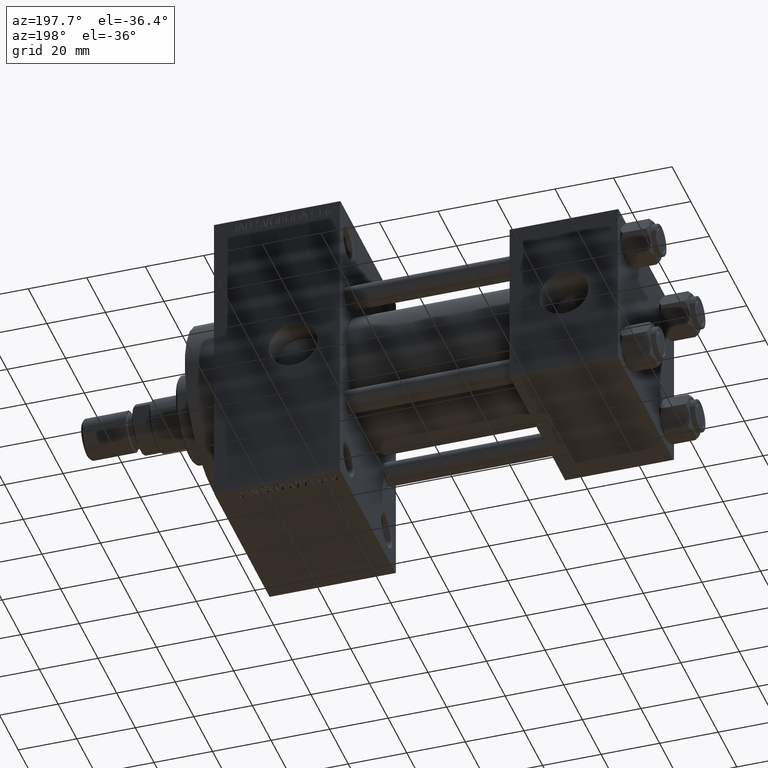
[diagram: clean part render]
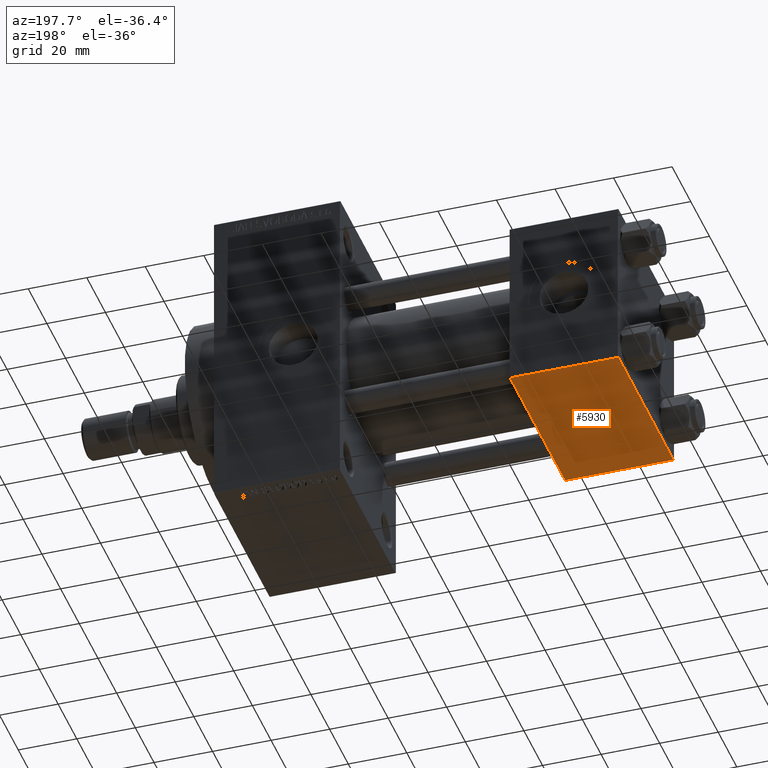
[diagram: same view with one face highlighted and labeled with its STEP entity id]
A machine part, auxiliary view. The second image highlights one B-rep face of the part: STEP entity #5930.
In plain terms, the highlighted planar face has unit normal (0, 0, -1).
Its self-contained STEP definition (entity closure, byte-faithful):
#326 = LINE ( 'NONE', #6632, #22971 ) ;
#526 = ORIENTED_EDGE ( 'NONE', *, *, #32800, .T. ) ;
#676 = FACE_OUTER_BOUND ( 'NONE', #42690, .T. ) ;
#1029 = ORIENTED_EDGE ( 'NONE', *, *, #11026, .T. ) ;
#4368 = DIRECTION ( 'NONE',  ( 0.000000000000000000, -1.000000000000000000, -1.156482317317871725E-16 ) ) ;
#4650 = LINE ( 'NONE', #19620, #46420 ) ;
#5930 = ADVANCED_FACE ( 'NONE', ( #676 ), #38075, .T. ) ;
#6486 = CARTESIAN_POINT ( 'NONE',  ( 0.000000000000000000, -29.50000000000000000, -30.00000000000000711 ) ) ;
#6632 = CARTESIAN_POINT ( 'NONE',  ( 0.000000000000000000, -29.50000000000001066, -30.00000000000000711 ) ) ;
#7405 = CARTESIAN_POINT ( 'NONE',  ( 37.00000000000000000, 29.49999999999997868, -30.00000000000000000 ) ) ;
#8398 = DIRECTION ( 'NONE',  ( 0.000000000000000000, 1.156482317317871725E-16, -1.000000000000000000 ) ) ;
#10427 = AXIS2_PLACEMENT_3D ( 'NONE', #12481, #8398, #37612 ) ;
#11026 = EDGE_CURVE ( 'NONE', #38920, #27056, #41172, .T. ) ;
#12481 = CARTESIAN_POINT ( 'NONE',  ( 37.00000000000000000, 29.99999999999999289, -30.00000000000000000 ) ) ;
#13767 = CARTESIAN_POINT ( 'NONE',  ( 0.000000000000000000, 29.49999999999997868, -30.00000000000000000 ) ) ;
#19620 = CARTESIAN_POINT ( 'NONE',  ( 0.000000000000000000, 29.99999999999999289, -30.00000000000000000 ) ) ;
#22310 = DIRECTION ( 'NONE',  ( -1.000000000000000000, 0.000000000000000000, 0.000000000000000000 ) ) ;
#22971 = VECTOR ( 'NONE', #22310, 1000.000000000000000 ) ;
#26154 = DIRECTION ( 'NONE',  ( 0.000000000000000000, -1.000000000000000000, -1.156482317317871725E-16 ) ) ;
#27056 = VERTEX_POINT ( 'NONE', #36650 ) ;
#28410 = EDGE_CURVE ( 'NONE', #38920, #39843, #4650, .T. ) ;
#30660 = VECTOR ( 'NONE', #36859, 1000.000000000000000 ) ;
#32800 = EDGE_CURVE ( 'NONE', #27056, #44898, #33827, .T. ) ;
#33580 = CARTESIAN_POINT ( 'NONE',  ( 37.00000000000000000, 29.99999999999999289, -30.00000000000000000 ) ) ;
#33827 = LINE ( 'NONE', #33580, #34232 ) ;
#34232 = VECTOR ( 'NONE', #4368, 1000.000000000000000 ) ;
#36650 = CARTESIAN_POINT ( 'NONE',  ( 37.00000000000000000, 29.49999999999997868, -30.00000000000000000 ) ) ;
#36859 = DIRECTION ( 'NONE',  ( 1.000000000000000000, 0.000000000000000000, 0.000000000000000000 ) ) ;
#37612 = DIRECTION ( 'NONE',  ( 0.000000000000000000, 1.000000000000000000, 1.156482317317871725E-16 ) ) ;
#38075 = PLANE ( 'NONE',  #10427 ) ;
#38920 = VERTEX_POINT ( 'NONE', #13767 ) ;
#39117 = ORIENTED_EDGE ( 'NONE', *, *, #28410, .F. ) ;
#39188 = CARTESIAN_POINT ( 'NONE',  ( 37.00000000000000000, -29.50000000000000000, -30.00000000000000711 ) ) ;
#39843 = VERTEX_POINT ( 'NONE', #6486 ) ;
#41172 = LINE ( 'NONE', #7405, #30660 ) ;
#42690 = EDGE_LOOP ( 'NONE', ( #39117, #1029, #526, #45628 ) ) ;
#44898 = VERTEX_POINT ( 'NONE', #39188 ) ;
#45489 = EDGE_CURVE ( 'NONE', #44898, #39843, #326, .T. ) ;
#45628 = ORIENTED_EDGE ( 'NONE', *, *, #45489, .T. ) ;
#46420 = VECTOR ( 'NONE', #26154, 1000.000000000000000 ) ;